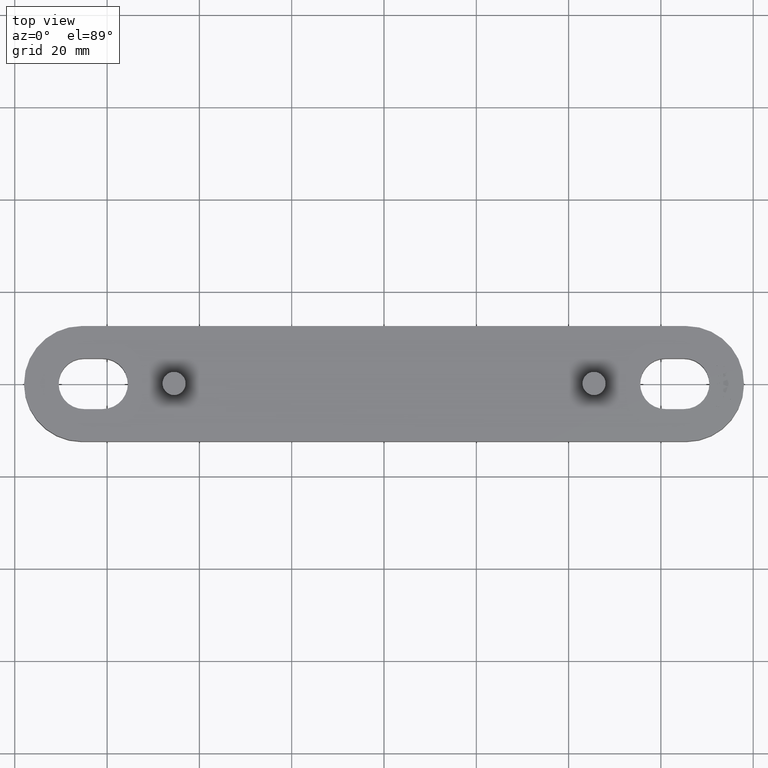
[diagram: clean part render]
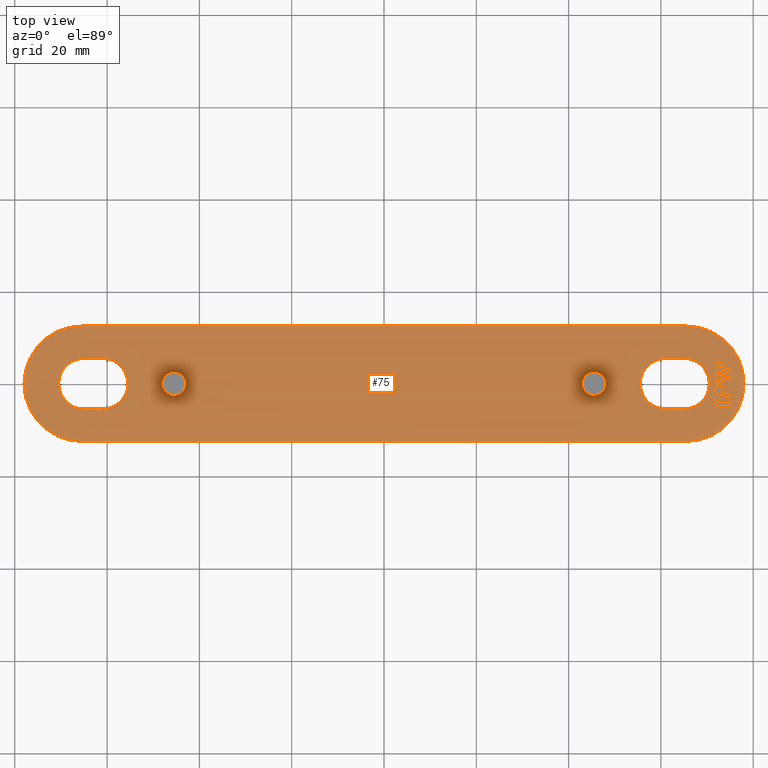
[diagram: same view with one face highlighted and labeled with its STEP entity id]
A machine part, top view. The second image highlights one B-rep face of the part: STEP entity #75.
In plain terms, the highlighted planar face has unit normal (0, -0, -1).
Its self-contained STEP definition (entity closure, byte-faithful):
#75 = ADVANCED_FACE( '', ( #684, #685, #686, #687, #688, #689, #690, #691, #692, #693 ), #694, .F. );
#684 = FACE_BOUND( '', #2002, .T. );
#685 = FACE_BOUND( '', #2003, .T. );
#686 = FACE_BOUND( '', #2004, .T. );
#687 = FACE_BOUND( '', #2005, .T. );
#688 = FACE_BOUND( '', #2006, .T. );
#689 = FACE_OUTER_BOUND( '', #2007, .T. );
#690 = FACE_BOUND( '', #2008, .T. );
#691 = FACE_BOUND( '', #2009, .T. );
#692 = FACE_BOUND( '', #2010, .T. );
#693 = FACE_BOUND( '', #2011, .T. );
#694 = PLANE( '', #2012 );
#2002 = EDGE_LOOP( '', ( #3320, #3321, #3322, #3323, #3324, #3325, #3326 ) );
#2003 = EDGE_LOOP( '', ( #3327, #3328, #3329, #3330 ) );
#2004 = EDGE_LOOP( '', ( #3331, #3332, #3333, #3334, #3335, #3336 ) );
#2005 = EDGE_LOOP( '', ( #3337 ) );
#2006 = EDGE_LOOP( '', ( #3338 ) );
#2007 = EDGE_LOOP( '', ( #3339, #3340, #3341, #3342, #3343, #3344 ) );
#2008 = EDGE_LOOP( '', ( #3345, #3346, #3347, #3348, #3349, #3350 ) );
#2009 = EDGE_LOOP( '', ( #3351, #3352, #3353, #3354, #3355 ) );
#2010 = EDGE_LOOP( '', ( #3356, #3357, #3358, #3359 ) );
#2011 = EDGE_LOOP( '', ( #3360, #3361, #3362, #3363, #3364, #3365, #3366, #3367 ) );
#2012 = AXIS2_PLACEMENT_3D( '', #3368, #3369, #3370 );
#3320 = ORIENTED_EDGE( '', *, *, #8216, .F. );
#3321 = ORIENTED_EDGE( '', *, *, #8217, .F. );
#3322 = ORIENTED_EDGE( '', *, *, #8218, .F. );
#3323 = ORIENTED_EDGE( '', *, *, #8219, .F. );
#3324 = ORIENTED_EDGE( '', *, *, #8220, .F. );
#3325 = ORIENTED_EDGE( '', *, *, #8221, .F. );
#3326 = ORIENTED_EDGE( '', *, *, #8222, .F. );
#3327 = ORIENTED_EDGE( '', *, *, #8223, .F. );
#3328 = ORIENTED_EDGE( '', *, *, #8224, .F. );
#3329 = ORIENTED_EDGE( '', *, *, #8225, .F. );
#3330 = ORIENTED_EDGE( '', *, *, #8226, .F. );
#3331 = ORIENTED_EDGE( '', *, *, #8227, .F. );
#3332 = ORIENTED_EDGE( '', *, *, #8228, .F. );
#3333 = ORIENTED_EDGE( '', *, *, #8229, .F. );
#3334 = ORIENTED_EDGE( '', *, *, #8230, .F. );
#3335 = ORIENTED_EDGE( '', *, *, #8231, .F. );
#3336 = ORIENTED_EDGE( '', *, *, #8232, .F. );
#3337 = ORIENTED_EDGE( '', *, *, #8233, .T. );
#3338 = ORIENTED_EDGE( '', *, *, #8234, .T. );
#3339 = ORIENTED_EDGE( '', *, *, #8235, .F. );
#3340 = ORIENTED_EDGE( '', *, *, #8236, .F. );
#3341 = ORIENTED_EDGE( '', *, *, #8237, .F. );
#3342 = ORIENTED_EDGE( '', *, *, #8238, .F. );
#3343 = ORIENTED_EDGE( '', *, *, #8239, .F. );
#3344 = ORIENTED_EDGE( '', *, *, #8240, .F. );
#3345 = ORIENTED_EDGE( '', *, *, #8241, .F. );
#3346 = ORIENTED_EDGE( '', *, *, #8242, .F. );
#3347 = ORIENTED_EDGE( '', *, *, #8243, .F. );
#3348 = ORIENTED_EDGE( '', *, *, #8244, .F. );
#3349 = ORIENTED_EDGE( '', *, *, #8245, .F. );
#3350 = ORIENTED_EDGE( '', *, *, #8246, .F. );
#3351 = ORIENTED_EDGE( '', *, *, #8247, .F. );
#3352 = ORIENTED_EDGE( '', *, *, #8248, .F. );
#3353 = ORIENTED_EDGE( '', *, *, #8249, .F. );
#3354 = ORIENTED_EDGE( '', *, *, #8250, .F. );
#3355 = ORIENTED_EDGE( '', *, *, #8251, .F. );
#3356 = ORIENTED_EDGE( '', *, *, #8252, .F. );
#3357 = ORIENTED_EDGE( '', *, *, #8253, .F. );
#3358 = ORIENTED_EDGE( '', *, *, #8254, .F. );
#3359 = ORIENTED_EDGE( '', *, *, #8255, .F. );
#3360 = ORIENTED_EDGE( '', *, *, #8256, .F. );
#3361 = ORIENTED_EDGE( '', *, *, #8257, .F. );
#3362 = ORIENTED_EDGE( '', *, *, #8258, .F. );
#3363 = ORIENTED_EDGE( '', *, *, #8259, .F. );
#3364 = ORIENTED_EDGE( '', *, *, #8260, .F. );
#3365 = ORIENTED_EDGE( '', *, *, #8261, .F. );
#3366 = ORIENTED_EDGE( '', *, *, #8262, .F. );
#3367 = ORIENTED_EDGE( '', *, *, #8263, .F. );
#3368 = CARTESIAN_POINT( '', ( 65.5000000000000, -7.75475603870257E-016, 9.99999999999998 ) );
#3369 = DIRECTION( '', ( 0.000000000000000, -6.12303176911189E-017, -1.00000000000000 ) );
#3370 = DIRECTION( '', ( 1.00000000000000, -1.60814287233912E-016, 9.84670989660330E-033 ) );
#8216 = EDGE_CURVE( '', #9752, #9753, #9754, .T. );
#8217 = EDGE_CURVE( '', #9755, #9752, #9756, .T. );
#8218 = EDGE_CURVE( '', #9757, #9755, #9758, .T. );
#8219 = EDGE_CURVE( '', #9759, #9757, #9760, .T. );
#8220 = EDGE_CURVE( '', #9761, #9759, #9762, .T. );
#8221 = EDGE_CURVE( '', #9763, #9761, #9764, .T. );
#8222 = EDGE_CURVE( '', #9753, #9763, #9765, .T. );
#8223 = EDGE_CURVE( '', #9766, #9767, #9768, .T. );
#8224 = EDGE_CURVE( '', #9769, #9766, #9770, .T. );
#8225 = EDGE_CURVE( '', #9771, #9769, #9772, .T. );
#8226 = EDGE_CURVE( '', #9767, #9771, #9773, .T. );
#8227 = EDGE_CURVE( '', #9774, #9775, #9776, .T. );
#8228 = EDGE_CURVE( '', #9777, #9774, #9778, .T. );
#8229 = EDGE_CURVE( '', #9779, #9777, #9780, .T. );
#8230 = EDGE_CURVE( '', #9781, #9779, #9782, .T. );
#8231 = EDGE_CURVE( '', #9783, #9781, #9784, .T. );
#8232 = EDGE_CURVE( '', #9775, #9783, #9785, .T. );
#8233 = EDGE_CURVE( '', #9786, #9786, #9787, .T. );
#8234 = EDGE_CURVE( '', #9788, #9788, #9789, .T. );
#8235 = EDGE_CURVE( '', #9790, #9791, #9792, .T. );
#8236 = EDGE_CURVE( '', #9793, #9790, #9794, .T. );
#8237 = EDGE_CURVE( '', #9795, #9793, #9796, .T. );
#8238 = EDGE_CURVE( '', #9797, #9795, #9798, .T. );
#8239 = EDGE_CURVE( '', #9799, #9797, #9800, .T. );
#8240 = EDGE_CURVE( '', #9791, #9799, #9801, .T. );
#8241 = EDGE_CURVE( '', #9802, #9803, #9804, .T. );
#8242 = EDGE_CURVE( '', #9805, #9802, #9806, .T. );
#8243 = EDGE_CURVE( '', #9807, #9805, #9808, .T. );
#8244 = EDGE_CURVE( '', #9809, #9807, #9810, .T. );
#8245 = EDGE_CURVE( '', #9811, #9809, #9812, .T. );
#8246 = EDGE_CURVE( '', #9803, #9811, #9813, .T. );
#8247 = EDGE_CURVE( '', #9814, #9815, #9816, .T. );
#8248 = EDGE_CURVE( '', #9817, #9814, #9818, .T. );
#8249 = EDGE_CURVE( '', #9819, #9817, #9820, .T. );
#8250 = EDGE_CURVE( '', #9821, #9819, #9822, .T. );
#8251 = EDGE_CURVE( '', #9815, #9821, #9823, .T. );
#8252 = EDGE_CURVE( '', #9824, #9825, #9826, .T. );
#8253 = EDGE_CURVE( '', #9827, #9824, #9828, .T. );
#8254 = EDGE_CURVE( '', #9829, #9827, #9830, .T. );
#8255 = EDGE_CURVE( '', #9825, #9829, #9831, .T. );
#8256 = EDGE_CURVE( '', #9832, #9833, #9834, .T. );
#8257 = EDGE_CURVE( '', #9835, #9832, #9836, .T. );
#8258 = EDGE_CURVE( '', #9837, #9835, #9838, .T. );
#8259 = EDGE_CURVE( '', #9839, #9837, #9840, .T. );
#8260 = EDGE_CURVE( '', #9841, #9839, #9842, .T. );
#8261 = EDGE_CURVE( '', #9843, #9841, #9844, .T. );
#8262 = EDGE_CURVE( '', #9845, #9843, #9846, .T. );
#8263 = EDGE_CURVE( '', #9833, #9845, #9847, .T. );
#9752 = VERTEX_POINT( '', #12316 );
#9753 = VERTEX_POINT( '', #12317 );
#9754 = LINE( '', #12318, #12319 );
#9755 = VERTEX_POINT( '', #12320 );
#9756 = LINE( '', #12321, #12322 );
#9757 = VERTEX_POINT( '', #12323 );
#9758 = LINE( '', #12324, #12325 );
#9759 = VERTEX_POINT( '', #12326 );
#9760 = LINE( '', #12327, #12328 );
#9761 = VERTEX_POINT( '', #12329 );
#9762 = LINE( '', #12330, #12331 );
#9763 = VERTEX_POINT( '', #12332 );
#9764 = LINE( '', #12333, #12334 );
#9765 = LINE( '', #12335, #12336 );
#9766 = VERTEX_POINT( '', #12337 );
#9767 = VERTEX_POINT( '', #12338 );
#9768 = LINE( '', #12339, #12340 );
#9769 = VERTEX_POINT( '', #12341 );
#9770 = LINE( '', #12342, #12343 );
#9771 = VERTEX_POINT( '', #12344 );
#9772 = LINE( '', #12345, #12346 );
#9773 = LINE( '', #12347, #12348 );
#9774 = VERTEX_POINT( '', #12349 );
#9775 = VERTEX_POINT( '', #12350 );
#9776 = LINE( '', #12351, #12352 );
#9777 = VERTEX_POINT( '', #12353 );
#9778 = CIRCLE( '', #12354, 5.50000000000000 );
#9779 = VERTEX_POINT( '', #12355 );
#9780 = CIRCLE( '', #12356, 5.50000000000023 );
#9781 = VERTEX_POINT( '', #12357 );
#9782 = LINE( '', #12358, #12359 );
#9783 = VERTEX_POINT( '', #12360 );
#9784 = CIRCLE( '', #12361, 5.50000000000001 );
#9785 = CIRCLE( '', #12362, 5.50000000000024 );
#9786 = VERTEX_POINT( '', #12363 );
#9787 = CIRCLE( '', #12364, 2.54363766232053 );
#9788 = VERTEX_POINT( '', #12365 );
#9789 = CIRCLE( '', #12366, 2.54363766232054 );
#9790 = VERTEX_POINT( '', #12367 );
#9791 = VERTEX_POINT( '', #12368 );
#9792 = CIRCLE( '', #12369, 12.5000000000000 );
#9793 = VERTEX_POINT( '', #12370 );
#9794 = LINE( '', #12371, #12372 );
#9795 = VERTEX_POINT( '', #12373 );
#9796 = CIRCLE( '', #12374, 12.5000000000000 );
#9797 = VERTEX_POINT( '', #12375 );
#9798 = CIRCLE( '', #12376, 12.5000000000000 );
#9799 = VERTEX_POINT( '', #12377 );
#9800 = LINE( '', #12378, #12379 );
#9801 = CIRCLE( '', #12380, 12.5000000000000 );
#9802 = VERTEX_POINT( '', #12381 );
#9803 = VERTEX_POINT( '', #12382 );
#9804 = CIRCLE( '', #12383, 5.50000000000012 );
#9805 = VERTEX_POINT( '', #12384 );
#9806 = LINE( '', #12385, #12386 );
#9807 = VERTEX_POINT( '', #12387 );
#9808 = CIRCLE( '', #12388, 5.50000000000000 );
#9809 = VERTEX_POINT( '', #12389 );
#9810 = CIRCLE( '', #12390, 5.50000000000012 );
#9811 = VERTEX_POINT( '', #12391 );
#9812 = LINE( '', #12392, #12393 );
#9813 = CIRCLE( '', #12394, 5.50000000000000 );
#9814 = VERTEX_POINT( '', #12395 );
#9815 = VERTEX_POINT( '', #12396 );
#9816 = LINE( '', #12397, #12398 );
#9817 = VERTEX_POINT( '', #12399 );
#9818 = LINE( '', #12400, #12401 );
#9819 = VERTEX_POINT( '', #12402 );
#9820 = LINE( '', #12403, #12404 );
#9821 = VERTEX_POINT( '', #12405 );
#9822 = LINE( '', #12406, #12407 );
#9823 = LINE( '', #12408, #12409 );
#9824 = VERTEX_POINT( '', #12410 );
#9825 = VERTEX_POINT( '', #12411 );
#9826 = LINE( '', #12412, #12413 );
#9827 = VERTEX_POINT( '', #12414 );
#9828 = LINE( '', #12415, #12416 );
#9829 = VERTEX_POINT( '', #12417 );
#9830 = LINE( '', #12418, #12419 );
#9831 = LINE( '', #12420, #12421 );
#9832 = VERTEX_POINT( '', #12422 );
#9833 = VERTEX_POINT( '', #12423 );
#9834 = CIRCLE( '', #12424, 1.20000000000001 );
#9835 = VERTEX_POINT( '', #12425 );
#9836 = LINE( '', #12426, #12427 );
#9837 = VERTEX_POINT( '', #12428 );
#9838 = LINE( '', #12429, #12430 );
#9839 = VERTEX_POINT( '', #12431 );
#9840 = LINE( '', #12432, #12433 );
#9841 = VERTEX_POINT( '', #12434 );
#9842 = CIRCLE( '', #12435, 0.799999999999992 );
#9843 = VERTEX_POINT( '', #12436 );
#9844 = LINE( '', #12437, #12438 );
#9845 = VERTEX_POINT( '', #12439 );
#9846 = LINE( '', #12440, #12441 );
#9847 = LINE( '', #12442, #12443 );
#12316 = CARTESIAN_POINT( '', ( 71.6000000000000, -1.94153815900044, 9.99999999999994 ) );
#12317 = CARTESIAN_POINT( '', ( 75.1973661704646, -3.39489558569016, 9.99999999999994 ) );
#12318 = CARTESIAN_POINT( '', ( 71.6000000000000, -1.94153815900044, 9.99999999999994 ) );
#12319 = VECTOR( '', #16336, 1000.00000000000 );
#12320 = CARTESIAN_POINT( '', ( 71.6000000000000, -0.958868987414419, 9.99999999999994 ) );
#12321 = CARTESIAN_POINT( '', ( 71.6000000000000, -0.958868987414417, 9.99999999999994 ) );
#12322 = VECTOR( '', #16337, 1000.00000000000 );
#12323 = CARTESIAN_POINT( '', ( 73.4327570440905, -0.218257757464651, 9.99999999999994 ) );
#12324 = CARTESIAN_POINT( '', ( 73.4327570440905, -0.218257757464650, 9.99999999999994 ) );
#12325 = VECTOR( '', #16338, 1000.00000000000 );
#12326 = CARTESIAN_POINT( '', ( 74.5833737475895, -0.683055647480841, 9.99999999999994 ) );
#12327 = CARTESIAN_POINT( '', ( 74.5833737475895, -0.683055647480847, 9.99999999999994 ) );
#12328 = VECTOR( '', #16339, 1000.00000000000 );
#12329 = CARTESIAN_POINT( '', ( 72.6849571645033, -1.45010139340489, 9.99999999999994 ) );
#12330 = CARTESIAN_POINT( '', ( 72.6849571645033, -1.45010139340488, 9.99999999999994 ) );
#12331 = VECTOR( '', #16340, 1000.00000000000 );
#12332 = CARTESIAN_POINT( '', ( 75.1973661704646, -2.46529980565778, 9.99999999999994 ) );
#12333 = CARTESIAN_POINT( '', ( 75.1973661704646, -2.46529980565777, 9.99999999999994 ) );
#12334 = VECTOR( '', #16341, 1000.00000000000 );
#12335 = CARTESIAN_POINT( '', ( 75.1973661704646, -3.39489558569016, 9.99999999999994 ) );
#12336 = VECTOR( '', #16342, 1000.00000000000 );
#12337 = CARTESIAN_POINT( '', ( 71.6000000000000, 1.30847678860070, 9.99999999999994 ) );
#12338 = CARTESIAN_POINT( '', ( 75.1973661704646, 2.76206261720197, 9.99999999999994 ) );
#12339 = CARTESIAN_POINT( '', ( 71.6000000000000, 1.30847678860071, 9.99999999999994 ) );
#12340 = VECTOR( '', #16343, 1000.00000000000 );
#12341 = CARTESIAN_POINT( '', ( 71.6000000000000, 2.23799443113703, 9.99999999999994 ) );
#12342 = CARTESIAN_POINT( '', ( 71.6000000000000, 2.23799443113702, 9.99999999999994 ) );
#12343 = VECTOR( '', #16344, 1000.00000000000 );
#12344 = CARTESIAN_POINT( '', ( 75.1973661704646, 3.69137590013323, 9.99999999999994 ) );
#12345 = CARTESIAN_POINT( '', ( 75.1973661704646, 3.69137590013322, 9.99999999999994 ) );
#12346 = VECTOR( '', #16345, 1000.00000000000 );
#12347 = CARTESIAN_POINT( '', ( 75.1973661704646, 2.76206261720197, 9.99999999999994 ) );
#12348 = VECTOR( '', #16346, 1000.00000000000 );
#12349 = CARTESIAN_POINT( '', ( -61.0000000000004, 5.50000000000022, 10.0000099999422 ) );
#12350 = CARTESIAN_POINT( '', ( -65.0000000000006, 5.50000000000023, 10.0000099999422 ) );
#12351 = CARTESIAN_POINT( '', ( -61.0000000000004, 5.50000000000022, 10.0000099999422 ) );
#12352 = VECTOR( '', #16347, 1000.00000000000 );
#12353 = CARTESIAN_POINT( '', ( -55.5000000000002, -5.45922837670800E-015, 10.0000099999422 ) );
#12354 = AXIS2_PLACEMENT_3D( '', #16348, #16349, #16350 );
#12355 = CARTESIAN_POINT( '', ( -61.0000000000004, -5.50000000000024, 10.0000099999422 ) );
#12356 = AXIS2_PLACEMENT_3D( '', #16351, #16352, #16353 );
#12357 = CARTESIAN_POINT( '', ( -65.0000000000006, -5.50000000000024, 10.0000099999422 ) );
#12358 = CARTESIAN_POINT( '', ( -65.0000000000006, -5.50000000000024, 10.0000099999422 ) );
#12359 = VECTOR( '', #16354, 1000.00000000000 );
#12360 = CARTESIAN_POINT( '', ( -70.5000000000008, -1.15307605426268E-014, 10.0000099999422 ) );
#12361 = AXIS2_PLACEMENT_3D( '', #16355, #16356, #16357 );
#12362 = AXIS2_PLACEMENT_3D( '', #16358, #16359, #16360 );
#12363 = CARTESIAN_POINT( '', ( 45.4999999999999, 2.54363766232053, 9.99999999999998 ) );
#12364 = AXIS2_PLACEMENT_3D( '', #16361, #16362, #16363 );
#12365 = CARTESIAN_POINT( '', ( -45.5000000000000, 2.54363766232053, 9.99999999999998 ) );
#12366 = AXIS2_PLACEMENT_3D( '', #16364, #16365, #16366 );
#12367 = CARTESIAN_POINT( '', ( 65.5000000000001, 12.5000000000000, 9.99999999999998 ) );
#12368 = CARTESIAN_POINT( '', ( 78.0000000000000, -7.91833504147631E-015, 9.99999999999998 ) );
#12369 = AXIS2_PLACEMENT_3D( '', #16367, #16368, #16369 );
#12370 = CARTESIAN_POINT( '', ( -65.4999999999999, 12.5000000000000, 9.99999999999998 ) );
#12371 = CARTESIAN_POINT( '', ( -65.4999999999999, 12.5000000000000, 9.99999999999998 ) );
#12372 = VECTOR( '', #16370, 1000.00000000000 );
#12373 = CARTESIAN_POINT( '', ( -77.9999999999999, -4.18393618362157E-015, 9.99999999999998 ) );
#12374 = AXIS2_PLACEMENT_3D( '', #16371, #16372, #16373 );
#12375 = CARTESIAN_POINT( '', ( -65.4999999999999, -12.5000000000000, 9.99999999999998 ) );
#12376 = AXIS2_PLACEMENT_3D( '', #16374, #16375, #16376 );
#12377 = CARTESIAN_POINT( '', ( 65.5000000000001, -12.5000000000000, 9.99999999999998 ) );
#12378 = CARTESIAN_POINT( '', ( 65.5000000000001, -12.5000000000000, 9.99999999999998 ) );
#12379 = VECTOR( '', #16377, 1000.00000000000 );
#12380 = AXIS2_PLACEMENT_3D( '', #16378, #16379, #16380 );
#12381 = CARTESIAN_POINT( '', ( 65.0000000000006, -5.50000000000024, 10.0000099999422 ) );
#12382 = CARTESIAN_POINT( '', ( 70.5000000000006, -9.05403620485558E-015, 10.0000099999422 ) );
#12383 = AXIS2_PLACEMENT_3D( '', #16381, #16382, #16383 );
#12384 = CARTESIAN_POINT( '', ( 61.0000000000004, -5.50000000000024, 10.0000099999422 ) );
#12385 = CARTESIAN_POINT( '', ( 61.0000000000004, -5.50000000000024, 10.0000099999422 ) );
#12386 = VECTOR( '', #16384, 1000.00000000000 );
#12387 = CARTESIAN_POINT( '', ( 55.5000000000003, 1.00082269473577E-013, 10.0000099999422 ) );
#12388 = AXIS2_PLACEMENT_3D( '', #16385, #16386, #16387 );
#12389 = CARTESIAN_POINT( '', ( 61.0000000000004, 5.50000000000023, 10.0000099999422 ) );
#12390 = AXIS2_PLACEMENT_3D( '', #16388, #16389, #16390 );
#12391 = CARTESIAN_POINT( '', ( 65.0000000000006, 5.50000000000023, 10.0000099999422 ) );
#12392 = CARTESIAN_POINT( '', ( 65.0000000000006, 5.50000000000023, 10.0000099999422 ) );
#12393 = VECTOR( '', #16391, 1000.00000000000 );
#12394 = AXIS2_PLACEMENT_3D( '', #16392, #16393, #16394 );
#12395 = CARTESIAN_POINT( '', ( 71.6000000000000, 4.13597825270659, 9.99999999999995 ) );
#12396 = CARTESIAN_POINT( '', ( 72.4308540273208, 3.80004712542085, 9.99999999999995 ) );
#12397 = CARTESIAN_POINT( '', ( 71.6000000000000, 4.13597825270658, 9.99999999999995 ) );
#12398 = VECTOR( '', #16395, 1000.00000000000 );
#12399 = CARTESIAN_POINT( '', ( 71.6000000000000, 5.06529153563782, 9.99999999999995 ) );
#12400 = CARTESIAN_POINT( '', ( 71.6000000000000, 5.06529153563784, 9.99999999999995 ) );
#12401 = VECTOR( '', #16396, 1000.00000000000 );
#12402 = CARTESIAN_POINT( '', ( 74.2972101947165, 3.97568819540733, 9.99999999999995 ) );
#12403 = CARTESIAN_POINT( '', ( 74.2972101947165, 3.97568819540731, 9.99999999999995 ) );
#12404 = VECTOR( '', #16397, 1000.00000000000 );
#12405 = CARTESIAN_POINT( '', ( 72.4308540273208, 3.22197991900280, 9.99999999999995 ) );
#12406 = CARTESIAN_POINT( '', ( 72.4308540273208, 3.22197991900282, 9.99999999999995 ) );
#12407 = VECTOR( '', #16398, 1000.00000000000 );
#12408 = CARTESIAN_POINT( '', ( 72.4308540273208, 3.80004712542085, 9.99999999999995 ) );
#12409 = VECTOR( '', #16399, 1000.00000000000 );
#12410 = CARTESIAN_POINT( '', ( 71.6000000000000, -0.289999999999661, 9.99999999999994 ) );
#12411 = CARTESIAN_POINT( '', ( 75.1973661704646, 1.16358582860159, 9.99999999999994 ) );
#12412 = CARTESIAN_POINT( '', ( 71.6000000000000, -0.289999999999661, 9.99999999999994 ) );
#12413 = VECTOR( '', #16400, 1000.00000000000 );
#12414 = CARTESIAN_POINT( '', ( 71.6000000000000, 0.639583758879477, 9.99999999999994 ) );
#12415 = CARTESIAN_POINT( '', ( 71.6000000000000, 0.639583758879482, 9.99999999999994 ) );
#12416 = VECTOR( '', #16401, 1000.00000000000 );
#12417 = CARTESIAN_POINT( '', ( 75.1973661704646, 2.09316958748074, 9.99999999999994 ) );
#12418 = CARTESIAN_POINT( '', ( 75.1973661704646, 2.09316958748075, 9.99999999999994 ) );
#12419 = VECTOR( '', #16402, 1000.00000000000 );
#12420 = CARTESIAN_POINT( '', ( 75.1973661704646, 1.16358582860159, 9.99999999999994 ) );
#12421 = VECTOR( '', #16403, 1000.00000000000 );
#12422 = CARTESIAN_POINT( '', ( 71.6000000000000, -3.87288028181847, 9.99999999999994 ) );
#12423 = CARTESIAN_POINT( '', ( 72.8000000000000, -5.07288028181845, 9.99999999999994 ) );
#12424 = AXIS2_PLACEMENT_3D( '', #16404, #16405, #16406 );
#12425 = CARTESIAN_POINT( '', ( 71.6000000000000, -2.61040714641518, 9.99999999999994 ) );
#12426 = CARTESIAN_POINT( '', ( 71.6000000000000, -2.61040714641518, 9.99999999999994 ) );
#12427 = VECTOR( '', #16407, 1000.00000000000 );
#12428 = CARTESIAN_POINT( '', ( 72.1231249674403, -2.82176335265025, 9.99999999999994 ) );
#12429 = CARTESIAN_POINT( '', ( 72.1231249674403, -2.82176335265025, 9.99999999999994 ) );
#12430 = VECTOR( '', #16408, 1000.00000000000 );
#12431 = CARTESIAN_POINT( '', ( 72.1231249674403, -3.33274195062360, 9.99999999999994 ) );
#12432 = CARTESIAN_POINT( '', ( 72.1231249674403, -3.33274195062360, 9.99999999999994 ) );
#12433 = VECTOR( '', #16409, 1000.00000000000 );
#12434 = CARTESIAN_POINT( '', ( 72.9231249674403, -4.13274195062359, 9.99999999999994 ) );
#12435 = AXIS2_PLACEMENT_3D( '', #16410, #16411, #16412 );
#12436 = CARTESIAN_POINT( '', ( 75.1973661704646, -4.13274195062359, 9.99999999999994 ) );
#12437 = CARTESIAN_POINT( '', ( 75.1973661704646, -4.13274195062359, 9.99999999999994 ) );
#12438 = VECTOR( '', #16413, 1000.00000000000 );
#12439 = CARTESIAN_POINT( '', ( 75.1973661704646, -5.07288028181845, 9.99999999999994 ) );
#12440 = CARTESIAN_POINT( '', ( 75.1973661704646, -5.07288028181845, 9.99999999999994 ) );
#12441 = VECTOR( '', #16414, 1000.00000000000 );
#12442 = CARTESIAN_POINT( '', ( 72.8000000000000, -5.07288028181845, 9.99999999999994 ) );
#12443 = VECTOR( '', #16415, 1000.00000000000 );
#16336 = DIRECTION( '', ( 0.927190376050329, -0.374590451773198, -7.97084536518450E-017 ) );
#16337 = DIRECTION( '', ( -3.06151588455603E-016, -1.00000000000000, -6.12303176911259E-017 ) );
#16338 = DIRECTION( '', ( -0.927161130553612, -0.374662832411421, 3.38296463190462E-017 ) );
#16339 = DIRECTION( '', ( -0.927206645422846, 0.374550179126526, 7.97069839237428E-017 ) );
#16340 = DIRECTION( '', ( 0.927177805503196, 0.374621565025663, -3.38331941466469E-017 ) );
#16341 = DIRECTION( '', ( -0.927168564368796, 0.374644435760504, 7.97104235723483E-017 ) );
#16342 = DIRECTION( '', ( 3.06151588455603E-016, 1.00000000000000, 6.12303176911260E-017 ) );
#16343 = DIRECTION( '', ( 0.927169929060563, 0.374641058409020, -3.38315182835064E-017 ) );
#16344 = DIRECTION( '', ( -3.06151588455603E-016, -1.00000000000000, -6.12303176911260E-017 ) );
#16345 = DIRECTION( '', ( -0.927188223823226, -0.374595778945159, 3.38354109535934E-017 ) );
#16346 = DIRECTION( '', ( 3.06151588455602E-016, 1.00000000000000, 6.12303176911260E-017 ) );
#16347 = DIRECTION( '', ( -1.00000000000000, -1.15648231731786E-016, 7.08117796935337E-033 ) );
#16348 = CARTESIAN_POINT( '', ( -61.0000000000004, 2.16585376548323E-013, 10.0000099999422 ) );
#16349 = DIRECTION( '', ( -1.80952797562605E-049, 6.12303176911189E-017, 1.00000000000000 ) );
#16350 = DIRECTION( '', ( 2.59888188936538E-017, 1.00000000000000, -6.12303176911189E-017 ) );
#16351 = CARTESIAN_POINT( '', ( -61.0000000000004, -5.45922837670800E-015, 10.0000099999422 ) );
#16352 = DIRECTION( '', ( 0.000000000000000, 6.12303176911189E-017, 1.00000000000000 ) );
#16353 = DIRECTION( '', ( 1.00000000000000, -2.59888188936538E-017, 1.59130363727537E-033 ) );
#16354 = DIRECTION( '', ( 1.00000000000000, 1.15648231731786E-016, -7.08117796935337E-033 ) );
#16355 = CARTESIAN_POINT( '', ( -65.0000000000006, -2.36177450681623E-013, 10.0000099999422 ) );
#16356 = DIRECTION( '', ( 0.000000000000000, 6.12303176911189E-017, 1.00000000000000 ) );
#16357 = DIRECTION( '', ( -2.59888188936538E-017, -1.00000000000000, 6.12303176911189E-017 ) );
#16358 = CARTESIAN_POINT( '', ( -65.0000000000006, -1.06633988046384E-014, 10.0000099999422 ) );
#16359 = DIRECTION( '', ( 0.000000000000000, 6.12303176911189E-017, 1.00000000000000 ) );
#16360 = DIRECTION( '', ( -1.00000000000000, -1.31713315286049E-016, 8.06484813911529E-033 ) );
#16361 = CARTESIAN_POINT( '', ( 45.4999999999999, 4.31848567322699E-015, 9.99999999999998 ) );
#16362 = DIRECTION( '', ( 0.000000000000000, -6.12303176911189E-017, -1.00000000000000 ) );
#16363 = DIRECTION( '', ( 0.000000000000000, 1.00000000000000, -6.12303176911189E-017 ) );
#16364 = CARTESIAN_POINT( '', ( -45.5000000000000, -2.55177823316189E-015, 9.99999999999998 ) );
#16365 = DIRECTION( '', ( 0.000000000000000, -6.12303176911189E-017, -1.00000000000000 ) );
#16366 = DIRECTION( '', ( 0.000000000000000, 1.00000000000000, -6.12303176911189E-017 ) );
#16367 = CARTESIAN_POINT( '', ( 65.5000000000000, -7.75475603870257E-016, 9.99999999999998 ) );
#16368 = DIRECTION( '', ( -1.12103877145985E-048, -6.12303176911189E-017, -1.00000000000000 ) );
#16369 = DIRECTION( '', ( 1.60814287233912E-016, 1.00000000000000, -6.12303176911189E-017 ) );
#16370 = DIRECTION( '', ( 1.00000000000000, 2.46519032881566E-032, -1.50944387002457E-048 ) );
#16371 = CARTESIAN_POINT( '', ( -65.4999999999999, -2.85714377504243E-015, 9.99999999999998 ) );
#16372 = DIRECTION( '', ( 0.000000000000000, -6.12303176911189E-017, -1.00000000000000 ) );
#16373 = DIRECTION( '', ( 1.60814287233912E-016, 1.00000000000000, -6.12303176911189E-017 ) );
#16374 = CARTESIAN_POINT( '', ( -65.4999999999999, -3.89797786062852E-015, 9.99999999999998 ) );
#16375 = DIRECTION( '', ( -1.12103877145985E-048, -6.12303176911189E-017, -1.00000000000000 ) );
#16376 = DIRECTION( '', ( 1.60814287233912E-016, 1.00000000000000, -6.12303176911189E-017 ) );
#16377 = DIRECTION( '', ( -1.00000000000000, 0.000000000000000, 0.000000000000000 ) );
#16378 = CARTESIAN_POINT( '', ( 65.5000000000000, -1.12242029906562E-015, 9.99999999999998 ) );
#16379 = DIRECTION( '', ( 2.24207754291971E-048, -6.12303176911189E-017, -1.00000000000000 ) );
#16380 = DIRECTION( '', ( 1.60814287233912E-016, 1.00000000000000, -6.12303176911189E-017 ) );
#16381 = CARTESIAN_POINT( '', ( 65.0000000000006, -1.22795924291785E-013, 10.0000099999422 ) );
#16382 = DIRECTION( '', ( 0.000000000000000, 6.12303176911189E-017, 1.00000000000000 ) );
#16383 = DIRECTION( '', ( -7.67735878817116E-016, -1.00000000000000, 6.12303176911189E-017 ) );
#16384 = DIRECTION( '', ( 1.00000000000000, -1.25866837207459E-016, 7.70686642898904E-033 ) );
#16385 = CARTESIAN_POINT( '', ( 61.0000000000004, -2.32708003729670E-013, 10.0000099999422 ) );
#16386 = DIRECTION( '', ( 0.000000000000000, 6.12303176911189E-017, 1.00000000000000 ) );
#16387 = DIRECTION( '', ( 4.93881194621434E-016, -1.00000000000000, 6.12303176911189E-017 ) );
#16388 = CARTESIAN_POINT( '', ( 61.0000000000004, 1.01788315802087E-013, 10.0000099999422 ) );
#16389 = DIRECTION( '', ( -5.79048952200313E-048, 6.12303176911189E-017, 1.00000000000000 ) );
#16390 = DIRECTION( '', ( 4.93881194620551E-016, -1.00000000000000, 6.12303176911189E-017 ) );
#16391 = DIRECTION( '', ( -1.00000000000000, 1.25866837207459E-016, -7.70686642898904E-033 ) );
#16392 = CARTESIAN_POINT( '', ( 65.0000000000006, 2.22656908714242E-013, 10.0000099999422 ) );
#16393 = DIRECTION( '', ( 0.000000000000000, 6.12303176911189E-017, 1.00000000000000 ) );
#16394 = DIRECTION( '', ( -7.67735878816238E-016, -1.00000000000000, 6.12303176911189E-017 ) );
#16395 = DIRECTION( '', ( 0.927089140205382, -0.374840934415179, -7.97175920806417E-017 ) );
#16396 = DIRECTION( '', ( -2.50640437224345E-016, -1.00000000000000, -6.12303176911260E-017 ) );
#16397 = DIRECTION( '', ( -0.927200607094025, 0.374565126786347, 7.97075294449103E-017 ) );
#16398 = DIRECTION( '', ( 0.927243990558706, 0.374457717202846, -3.38472791328663E-017 ) );
#16399 = DIRECTION( '', ( -3.06151588455602E-016, -1.00000000000000, -6.12303176911260E-017 ) );
#16400 = DIRECTION( '', ( 0.927169929060563, 0.374641058409019, -3.38315182835064E-017 ) );
#16401 = DIRECTION( '', ( -5.28196193380634E-016, -1.00000000000000, -6.12303176911260E-017 ) );
#16402 = DIRECTION( '', ( -0.927169929060563, -0.374641058409020, 3.38315182835064E-017 ) );
#16403 = DIRECTION( '', ( 5.28196193380634E-016, 1.00000000000000, 6.12303176911261E-017 ) );
#16404 = CARTESIAN_POINT( '', ( 72.8000000000000, -3.87288028181847, 9.99999999999994 ) );
#16405 = DIRECTION( '', ( 0.000000000000000, 6.12303176911189E-017, 1.00000000000000 ) );
#16406 = DIRECTION( '', ( -1.00000000000000, 3.06151588455602E-016, -1.87457590227772E-032 ) );
#16407 = DIRECTION( '', ( -3.06151588455603E-016, -1.00000000000000, -6.12303176911260E-017 ) );
#16408 = DIRECTION( '', ( -0.927183854566787, 0.374606593415912, 7.97090426972473E-017 ) );
#16409 = DIRECTION( '', ( 3.06151588455603E-016, 1.00000000000000, 6.12303176911259E-017 ) );
#16410 = CARTESIAN_POINT( '', ( 72.9231249674403, -3.33274195062360, 9.99999999999994 ) );
#16411 = DIRECTION( '', ( 0.000000000000000, -6.12303176911189E-017, -1.00000000000000 ) );
#16412 = DIRECTION( '', ( -3.06151588455603E-016, -1.00000000000000, 6.12303176911189E-017 ) );
#16413 = DIRECTION( '', ( -1.00000000000000, 3.66866910114791E-016, 6.12303176911189E-017 ) );
#16414 = DIRECTION( '', ( 3.06151588455603E-016, 1.00000000000000, 6.12303176911261E-017 ) );
#16415 = DIRECTION( '', ( 1.00000000000000, -3.66866910114791E-016, -6.12303176911189E-017 ) );